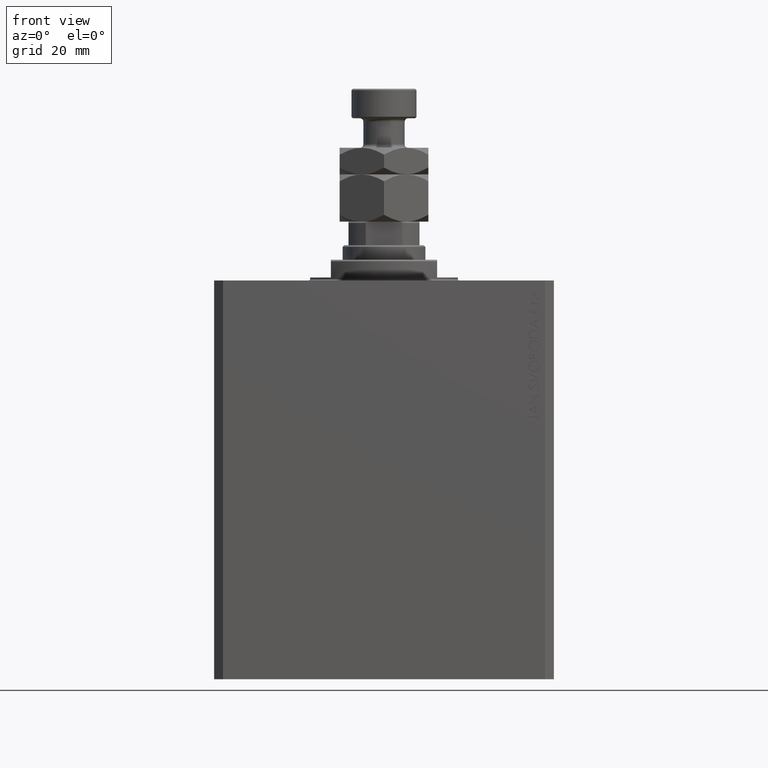
[diagram: clean part render]
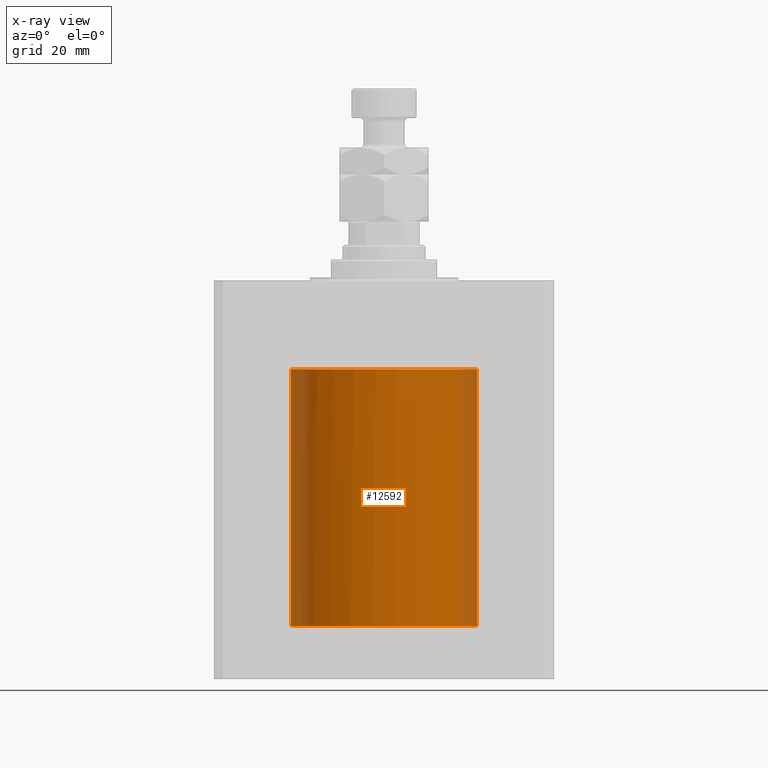
[diagram: x-ray — body ghosted, one internal face saturated and labeled with its STEP entity id]
A machine part, front view, then the same camera in x-ray: the body is ghosted and one INTERNAL B-rep face — a face not visible from any outside direction — is saturated and labeled: STEP entity #12592.
In plain terms, the highlighted cylindrical surface (partial cylindrical patch) has radius 31.5 mm, axis along (0, 0, 1).
Its self-contained STEP definition (entity closure, byte-faithful):
#156 = CARTESIAN_POINT ( 'NONE',  ( 31.49651623355827113, -0.5266027764248432108, -107.9469130230594800 ) ) ;
#385 = CARTESIAN_POINT ( 'NONE',  ( 31.48419274771890741, -1.003752801430392694, -107.7348525707003830 ) ) ;
#421 = DIRECTION ( 'NONE',  ( 1.000000000000000000, 0.000000000000000000, 0.000000000000000000 ) ) ;
#562 = CARTESIAN_POINT ( 'NONE',  ( 0.000000000000000000, 0.000000000000000000, -117.0999999999999943 ) ) ;
#1024 = DIRECTION ( 'NONE',  ( 1.000000000000000000, 0.000000000000000000, 0.000000000000000000 ) ) ;
#1312 = B_SPLINE_CURVE_WITH_KNOTS ( 'NONE', 3,
 ( #31651, #14362, #20692, #3548, #42179, #35151, #14584, #14139, #31889, #28604, #28385, #6606, #45916, #32116 ),
 .UNSPECIFIED., .F., .F.,
 ( 4, 2, 2, 2, 2, 2, 4 ),
 ( 0.006254484652153861554, 0.007036517457003363916, 0.007818550261852866279, 0.008209566664277617026, 0.008600583066702367774, 0.008991599469127118521, 0.009382615871551869269 ),
 .UNSPECIFIED. ) ;
#2042 = DIRECTION ( 'NONE',  ( 0.000000000000000000, 0.000000000000000000, 1.000000000000000000 ) ) ;
#2091 = LINE ( 'NONE', #12872, #3215 ) ;
#2682 = VERTEX_POINT ( 'NONE', #24920 ) ;
#3168 = LINE ( 'NONE', #35450, #6379 ) ;
#3215 = VECTOR ( 'NONE', #27126, 1000.000000000000000 ) ;
#3548 = CARTESIAN_POINT ( 'NONE',  ( 31.48485268472537513, -1.006016242866561550, -104.2518986956447549 ) ) ;
#3831 = ORIENTED_EDGE ( 'NONE', *, *, #33665, .T. ) ;
#4242 = AXIS2_PLACEMENT_3D ( 'NONE', #45088, #2042, #41821 ) ;
#5432 = CARTESIAN_POINT ( 'NONE',  ( 31.50000000000000000, 0.000000000000000000, -117.0999999999999943 ) ) ;
#6379 = VECTOR ( 'NONE', #42716, 1000.000000000000000 ) ;
#6606 = CARTESIAN_POINT ( 'NONE',  ( 31.43727534210788477, -1.987050037257513280, -105.7380122185808489 ) ) ;
#6950 = CARTESIAN_POINT ( 'NONE',  ( 31.43644381923633446, -1.999999999999602318, -106.1319147674915655 ) ) ;
#7102 = EDGE_CURVE ( 'NONE', #14038, #41824, #2091, .T. ) ;
#7137 = CARTESIAN_POINT ( 'NONE',  ( -31.47627458383467314, -1.228422599595581310, -30.58690868017701447 ) ) ;
#7313 = EDGE_CURVE ( 'NONE', #11156, #24953, #45065, .T. ) ;
#7897 = CARTESIAN_POINT ( 'NONE',  ( 0.000000000000000000, 0.000000000000000000, -117.0999999999999943 ) ) ;
#8474 = B_SPLINE_CURVE_WITH_KNOTS ( 'NONE', 3,
 ( #41842, #6950, #21275, #21939, #32225, #14473, #42750, #36417, #10707, #32912, #18677, #385, #11163, #156, #17766, #32452 ),
 .UNSPECIFIED., .F., .F.,
 ( 4, 2, 2, 2, 2, 2, 2, 4 ),
 ( 0.009382615871551869269, 0.009773230820200031962, 0.01016384576884819466, 0.01055446071749635735, 0.01094507566614452004, 0.01133569061479268274, 0.01172630556344084543, 0.01250753546073715521 ),
 .UNSPECIFIED. ) ;
#8555 = ORIENTED_EDGE ( 'NONE', *, *, #23183, .T. ) ;
#9186 = AXIS2_PLACEMENT_3D ( 'NONE', #7897, #22440, #421 ) ;
#9727 = B_SPLINE_CURVE_WITH_KNOTS ( 'NONE', 3,
 ( #46228, #27751, #42711, #17032, #24487, #39202, #7137, #31729, #21224, #38752 ),
 .UNSPECIFIED., .F., .F.,
 ( 4, 2, 2, 2, 4 ),
 ( 0.001968471068081006393, 0.002460037929978832645, 0.002951604791876658897, 0.003443171653774484281, 0.003934738515672310533 ),
 .UNSPECIFIED. ) ;
#10707 = CARTESIAN_POINT ( 'NONE',  ( 31.46407444263389053, -1.506829553733667559, -107.3215416408483520 ) ) ;
#11156 = VERTEX_POINT ( 'NONE', #34406 ) ;
#11163 = CARTESIAN_POINT ( 'NONE',  ( 31.48773138987391462, -0.8872616597623501633, -107.7971399355613755 ) ) ;
#12592 = ADVANCED_FACE ( 'NONE', ( #19082 ), #15108, .F. ) ;
#12872 = CARTESIAN_POINT ( 'NONE',  ( 31.50000000000000000, 0.000000000000000000, -117.0999999999999943 ) ) ;
#14038 = VERTEX_POINT ( 'NONE', #25846 ) ;
#14139 = CARTESIAN_POINT ( 'NONE',  ( 31.45222028857342522, -1.735837506356491033, -104.9980120116594122 ) ) ;
#14191 = ORIENTED_EDGE ( 'NONE', *, *, #17230, .T. ) ;
#14362 = CARTESIAN_POINT ( 'NONE',  ( 31.50000000000000711, -0.2611678296587112147, -104.0000000000000853 ) ) ;
#14404 = CARTESIAN_POINT ( 'NONE',  ( 31.50000000000000000, 0.000000000000000000, -30.10000000000000142 ) ) ;
#14473 = CARTESIAN_POINT ( 'NONE',  ( 31.44871262113419519, -1.797498854984184824, -106.8866739720063066 ) ) ;
#14584 = CARTESIAN_POINT ( 'NONE',  ( 31.45990289235030346, -1.590535423469516152, -104.7804472770964139 ) ) ;
#15108 = CYLINDRICAL_SURFACE ( 'NONE', #42234, 31.50000000000000000 ) ;
#16239 = CIRCLE ( 'NONE', #4242, 31.50000000000000000 ) ;
#17032 = CARTESIAN_POINT ( 'NONE',  ( -31.49373816518793134, -0.6479030711830476852, -30.89924871676793572 ) ) ;
#17230 = EDGE_CURVE ( 'NONE', #45327, #41824, #16239, .T. ) ;
#17766 = CARTESIAN_POINT ( 'NONE',  ( 31.50000000000000711, -0.2641644753935984968, -107.9999999999999858 ) ) ;
#18677 = CARTESIAN_POINT ( 'NONE',  ( 31.47648100377267610, -1.221906821746971739, -107.5887658252281796 ) ) ;
#19082 = FACE_OUTER_BOUND ( 'NONE', #25080, .T. ) ;
#19749 = DIRECTION ( 'NONE',  ( -0.000000000000000000, -0.000000000000000000, 1.000000000000000000 ) ) ;
#20692 = CARTESIAN_POINT ( 'NONE',  ( 31.49655533253666206, -0.5244229631002979009, -104.0524611924346203 ) ) ;
#21224 = CARTESIAN_POINT ( 'NONE',  ( -31.46053542408843029, -1.578950434106579648, -30.23875710244716686 ) ) ;
#21275 = CARTESIAN_POINT ( 'NONE',  ( 31.43727763971487832, -1.987013243169729382, -106.2621767881956600 ) ) ;
#21612 = EDGE_CURVE ( 'NONE', #27803, #45327, #9727, .T. ) ;
#21939 = CARTESIAN_POINT ( 'NONE',  ( 31.44044572002255933, -1.936238609098685171, -106.5176276127064057 ) ) ;
#22440 = DIRECTION ( 'NONE',  ( 0.000000000000000000, 0.000000000000000000, 1.000000000000000000 ) ) ;
#22501 = ORIENTED_EDGE ( 'NONE', *, *, #21612, .T. ) ;
#23183 = EDGE_CURVE ( 'NONE', #2682, #41416, #8474, .T. ) ;
#24487 = CARTESIAN_POINT ( 'NONE',  ( -31.49005987750268787, -0.8043438504957256541, -30.83844943808289329 ) ) ;
#24920 = CARTESIAN_POINT ( 'NONE',  ( 31.43644381923632736, -1.999999999999602318, -106.0000000000000142 ) ) ;
#24953 = VERTEX_POINT ( 'NONE', #32728 ) ;
#25080 = EDGE_LOOP ( 'NONE', ( #33978, #3831, #22501, #14191, #38605, #41694, #8555, #34215 ) ) ;
#25846 = CARTESIAN_POINT ( 'NONE',  ( 31.50000000000000000, -8.369814204394935255E-24, -104.0000000000000142 ) ) ;
#27126 = DIRECTION ( 'NONE',  ( -0.000000000000000000, -0.000000000000000000, 1.000000000000000000 ) ) ;
#27751 = CARTESIAN_POINT ( 'NONE',  ( -31.49999999999999289, -0.1655884372801700033, -30.99999999999999645 ) ) ;
#27803 = VERTEX_POINT ( 'NONE', #34591 ) ;
#28358 = CARTESIAN_POINT ( 'NONE',  ( -31.45568311132346295, -1.670329308848988559, -30.10000000000000142 ) ) ;
#28385 = CARTESIAN_POINT ( 'NONE',  ( 31.44044773446764296, -1.936206353227569288, -105.4822062129580615 ) ) ;
#28604 = CARTESIAN_POINT ( 'NONE',  ( 31.44282756203102380, -1.897662384614844600, -105.3549830607569646 ) ) ;
#28895 = DIRECTION ( 'NONE',  ( -0.000000000000000000, -0.000000000000000000, 1.000000000000000000 ) ) ;
#30298 = EDGE_CURVE ( 'NONE', #24953, #41416, #37493, .T. ) ;
#30879 = CARTESIAN_POINT ( 'NONE',  ( 31.50000000000000000, 2.115822464172388752E-15, -108.0000000000000142 ) ) ;
#31651 = CARTESIAN_POINT ( 'NONE',  ( 31.50000000000000000, -8.369814204394935255E-24, -104.0000000000000142 ) ) ;
#31729 = CARTESIAN_POINT ( 'NONE',  ( -31.46581512805850878, -1.472196347977704489, -30.36379586281064391 ) ) ;
#31889 = CARTESIAN_POINT ( 'NONE',  ( 31.44872486828352720, -1.797284557493781243, -105.1129049671613274 ) ) ;
#32116 = CARTESIAN_POINT ( 'NONE',  ( 31.43644381923632736, -1.999999999999602318, -106.0000000000000142 ) ) ;
#32225 = CARTESIAN_POINT ( 'NONE',  ( 31.44281458444439536, -1.897877411374702783, -106.6444022018091715 ) ) ;
#32452 = CARTESIAN_POINT ( 'NONE',  ( 31.50000000000000000, 2.115822464172388752E-15, -108.0000000000000142 ) ) ;
#32728 = CARTESIAN_POINT ( 'NONE',  ( 31.50000000000000000, 0.000000000000000000, -117.0999999999999943 ) ) ;
#32912 = CARTESIAN_POINT ( 'NONE',  ( 31.47236300924845764, -1.322453193766295110, -107.5060296022319477 ) ) ;
#33665 = EDGE_CURVE ( 'NONE', #11156, #27803, #3168, .T. ) ;
#33978 = ORIENTED_EDGE ( 'NONE', *, *, #7313, .F. ) ;
#34215 = ORIENTED_EDGE ( 'NONE', *, *, #30298, .F. ) ;
#34406 = CARTESIAN_POINT ( 'NONE',  ( -31.50000000000000000, 3.857637417314162689E-15, -117.0999999999999943 ) ) ;
#34591 = CARTESIAN_POINT ( 'NONE',  ( -31.50000000000000000, 3.857542963677526976E-15, -30.99999999999999645 ) ) ;
#35151 = CARTESIAN_POINT ( 'NONE',  ( 31.46411164879456379, -1.506057066634440167, -104.6775752899322640 ) ) ;
#35450 = CARTESIAN_POINT ( 'NONE',  ( -31.50000000000000000, 3.857637417314162689E-15, -117.0999999999999943 ) ) ;
#36417 = CARTESIAN_POINT ( 'NONE',  ( 31.45986829311679500, -1.591210340082437780, -107.2186416612215396 ) ) ;
#37493 = LINE ( 'NONE', #5432, #42677 ) ;
#37628 = EDGE_CURVE ( 'NONE', #14038, #2682, #1312, .T. ) ;
#38605 = ORIENTED_EDGE ( 'NONE', *, *, #7102, .F. ) ;
#38752 = CARTESIAN_POINT ( 'NONE',  ( -31.45568311132346295, -1.670329308848988559, -30.10000000000000142 ) ) ;
#39202 = CARTESIAN_POINT ( 'NONE',  ( -31.48136485497055048, -1.092935033183744853, -30.68296119368725172 ) ) ;
#41416 = VERTEX_POINT ( 'NONE', #30879 ) ;
#41694 = ORIENTED_EDGE ( 'NONE', *, *, #37628, .T. ) ;
#41821 = DIRECTION ( 'NONE',  ( 1.000000000000000000, 0.000000000000000000, 0.000000000000000000 ) ) ;
#41824 = VERTEX_POINT ( 'NONE', #14404 ) ;
#41842 = CARTESIAN_POINT ( 'NONE',  ( 31.43644381923632736, -1.999999999999602318, -106.0000000000000142 ) ) ;
#42179 = CARTESIAN_POINT ( 'NONE',  ( 31.47654718428505305, -1.229266569362845063, -104.4009491226104984 ) ) ;
#42234 = AXIS2_PLACEMENT_3D ( 'NONE', #562, #28895, #1024 ) ;
#42677 = VECTOR ( 'NONE', #19749, 1000.000000000000000 ) ;
#42711 = CARTESIAN_POINT ( 'NONE',  ( -31.49867665059924349, -0.3296835877876421184, -30.97945265407803461 ) ) ;
#42716 = DIRECTION ( 'NONE',  ( -0.000000000000000000, -0.000000000000000000, 1.000000000000000000 ) ) ;
#42750 = CARTESIAN_POINT ( 'NONE',  ( 31.45220500162104571, -1.736105959509580909, -107.0014858672019642 ) ) ;
#45065 = CIRCLE ( 'NONE', #9186, 31.50000000000000000 ) ;
#45088 = CARTESIAN_POINT ( 'NONE',  ( 0.000000000000000000, 0.000000000000000000, -30.10000000000000142 ) ) ;
#45327 = VERTEX_POINT ( 'NONE', #28358 ) ;
#45916 = CARTESIAN_POINT ( 'NONE',  ( 31.43644381923633446, -1.999999999999602318, -105.8679496573550551 ) ) ;
#46228 = CARTESIAN_POINT ( 'NONE',  ( -31.50000000000000000, 3.857542963677526976E-15, -30.99999999999999645 ) ) ;